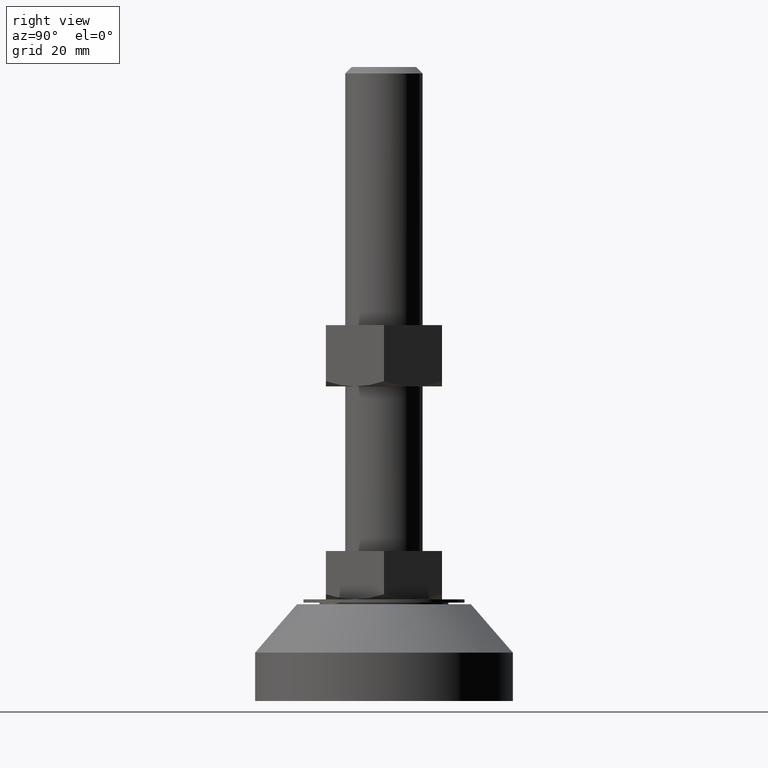
[diagram: clean part render]
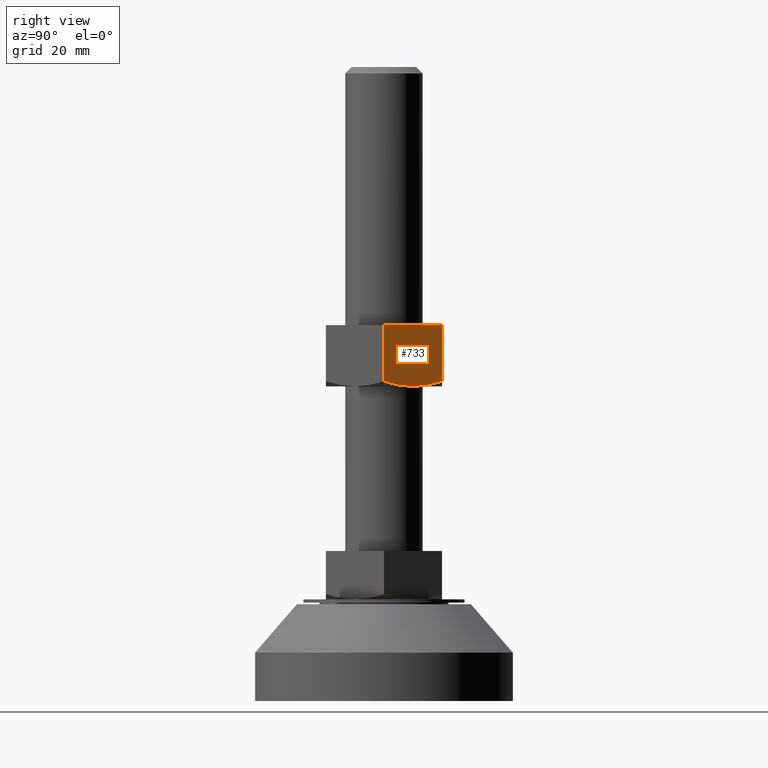
[diagram: same view with one face highlighted and labeled with its STEP entity id]
A machine part, right view. The second image highlights one B-rep face of the part: STEP entity #733.
In plain terms, the highlighted face is a freeform B-spline surface patch.
Its self-contained STEP definition (entity closure, byte-faithful):
#224=CARTESIAN_POINT('',(15.588457267900051,8.999999999873030,97.500000000000000));
#225=VERTEX_POINT('',#224);
#354=CARTESIAN_POINT('',(10.392304845919639,17.999999999997549,99.107695154885903));
#355=VERTEX_POINT('',#354);
#374=CARTESIAN_POINT('',(15.588457267900051,8.999999999873030,97.500000000000000));
#375=CARTESIAN_POINT('',(15.481315914300909,9.185574268406741,97.500000043512614));
#376=CARTESIAN_POINT('',(15.374015849467380,9.371423432353863,97.502209877789127));
#377=CARTESIAN_POINT('',(15.155775716641450,9.749426430658932,97.511217426481878));
#378=CARTESIAN_POINT('',(15.045003729873180,9.941289139796936,97.518151183907946));
#379=CARTESIAN_POINT('',(14.713509541403511,10.515453916640210,97.545891086833223));
#380=CARTESIAN_POINT('',(14.493281237455520,10.896900528342860,97.573655188426130));
#381=CARTESIAN_POINT('',(13.834800101353840,12.037423311896649,97.683556322917653));
#382=CARTESIAN_POINT('',(13.398756197239400,12.792673508153531,97.792364395394316));
#383=CARTESIAN_POINT('',(12.098387642017400,15.044977914363001,98.212522526810190));
#384=CARTESIAN_POINT('',(11.241795898953310,16.528638334693980,98.617241266311240));
#385=CARTESIAN_POINT('',(10.392304845523890,17.999999999808939,99.107695154677444));
#386=B_SPLINE_CURVE_WITH_KNOTS('',3,(#374,#375,#376,#377,#378,#379,#380,#381,#382,#383,#384,#385),.UNSPECIFIED.,.F.,.U.,(4,2,2,2,2,4),(0.500936633678290,0.531250000000001,0.562500000000001,0.625000000000001,0.750000000000001,1.0),.UNSPECIFIED.);
#387=EDGE_CURVE('',#225,#355,#386,.T.);
#407=CARTESIAN_POINT('',(20.784609691077652,-4.392649E-010,99.107695154885903));
#408=VERTEX_POINT('',#407);
#409=CARTESIAN_POINT('',(20.784609691077652,-4.392649E-010,99.107695154885903));
#410=CARTESIAN_POINT('',(19.936176362230540,1.469529631963607,98.617851944066317));
#411=CARTESIAN_POINT('',(19.081557466117559,2.949772981139701,98.214132543284578));
#412=CARTESIAN_POINT('',(17.786261838966901,5.193290818186438,97.794670784484524));
#413=CARTESIAN_POINT('',(17.352263406965690,5.944998152817759,97.685944140131639));
#414=CARTESIAN_POINT('',(16.479212292302311,7.457167041019384,97.538862945891779));
#415=CARTESIAN_POINT('',(16.040155242265381,8.217636159104647,97.500569204486325));
#416=CARTESIAN_POINT('',(15.595078103240279,8.988532377183507,97.500002109278341));
#417=CARTESIAN_POINT('',(15.591767761410660,8.994266057422834,97.500000000847052));
#418=CARTESIAN_POINT('',(15.588457268057860,9.000000000107995,97.500000002125731));
#419=B_SPLINE_CURVE_WITH_KNOTS('',3,(#409,#410,#411,#412,#413,#414,#415,#416,#417,#418),.UNSPECIFIED.,.F.,.U.,(4,2,2,2,4),(0.0,0.250000000000000,0.375000000000001,0.500000000000001,0.500936633656448),.UNSPECIFIED.);
#420=EDGE_CURVE('',#408,#225,#419,.T.);
#596=CARTESIAN_POINT('',(20.784609690826851,0.0,116.500000000000000));
#597=VERTEX_POINT('',#596);
#603=CARTESIAN_POINT('',(10.392304845413721,17.999999999999751,116.500000000000000));
#604=VERTEX_POINT('',#603);
#605=CARTESIAN_POINT('',(20.784609690826851,0.0,116.500000000000000));
#606=CARTESIAN_POINT('',(10.392304845413721,17.999999999999751,116.500000000000000));
#607=QUASI_UNIFORM_CURVE('',1,(#605,#606),.UNSPECIFIED.,.F.,.U.);
#608=EDGE_CURVE('',#597,#604,#607,.T.);
#705=CARTESIAN_POINT('',(10.392304845919639,17.999999999997549,99.107695154885903));
#706=CARTESIAN_POINT('',(10.392304845413721,17.999999999999751,116.500000000000000));
#707=QUASI_UNIFORM_CURVE('',1,(#705,#706),.UNSPECIFIED.,.F.,.U.);
#708=EDGE_CURVE('',#355,#604,#707,.T.);
#717=CARTESIAN_POINT('',(21.303705297978471,-0.899099965572424,96.550950036825682));
#718=CARTESIAN_POINT('',(9.873208959771670,18.899100447931751,96.550950036825682));
#719=CARTESIAN_POINT('',(21.303705297978471,-0.899099965572424,117.449050472794000));
#720=CARTESIAN_POINT('',(9.873208959771670,18.899100447931751,117.449050472794000));
#721=B_SPLINE_SURFACE_WITH_KNOTS('',1,1,((#717,#719),(#718,#720)),.UNSPECIFIED.,.F.,.F.,.U.,(2,2),(2,2),(0.0,22.860992676413591),(0.0,20.898100435968360),.UNSPECIFIED.);
#722=CARTESIAN_POINT('',(20.784609691077652,-4.392649E-010,99.107695154885903));
#723=CARTESIAN_POINT('',(20.784609690826851,0.0,116.500000000000000));
#724=QUASI_UNIFORM_CURVE('',1,(#722,#723),.UNSPECIFIED.,.F.,.U.);
#725=EDGE_CURVE('',#408,#597,#724,.T.);
#726=ORIENTED_EDGE('',*,*,#725,.F.);
#727=ORIENTED_EDGE('',*,*,#420,.T.);
#728=ORIENTED_EDGE('',*,*,#387,.T.);
#729=ORIENTED_EDGE('',*,*,#708,.T.);
#730=ORIENTED_EDGE('',*,*,#608,.F.);
#731=EDGE_LOOP('',(#726,#727,#728,#729,#730));
#732=FACE_OUTER_BOUND('',#731,.T.);
#733=ADVANCED_FACE('',(#732),#721,.T.);